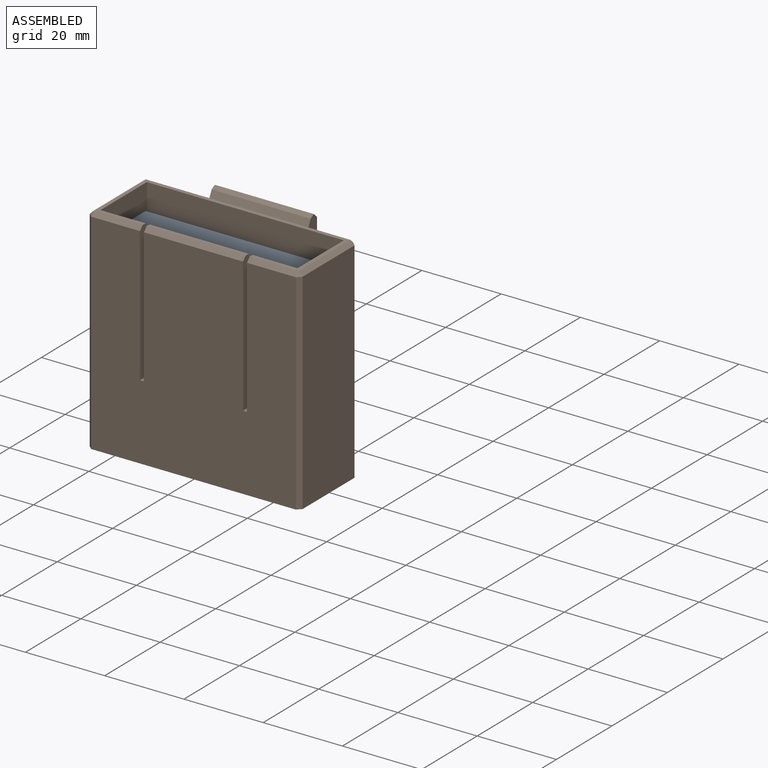
[diagram: assembled view]
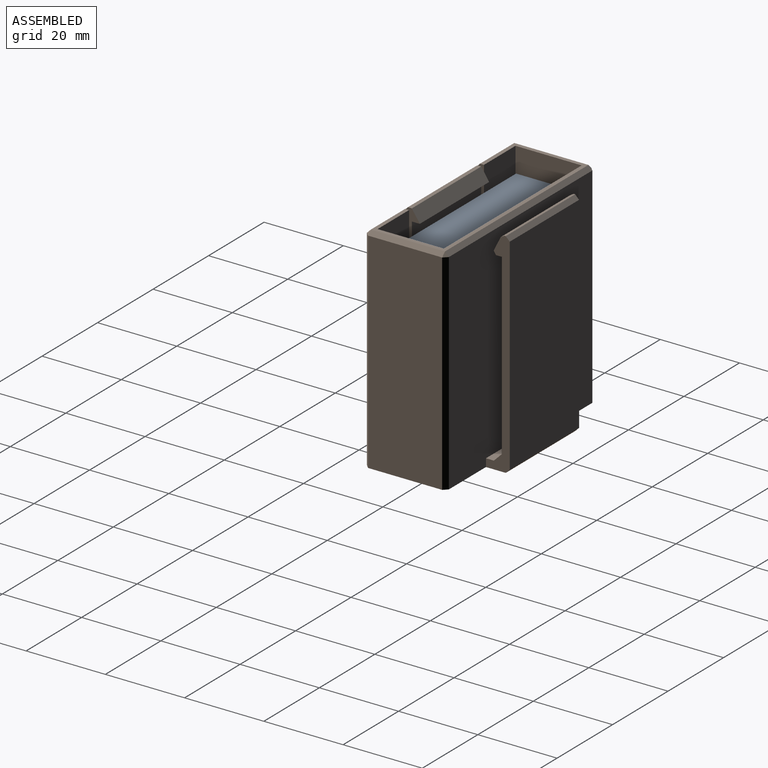
[diagram: assembled view, second angle]
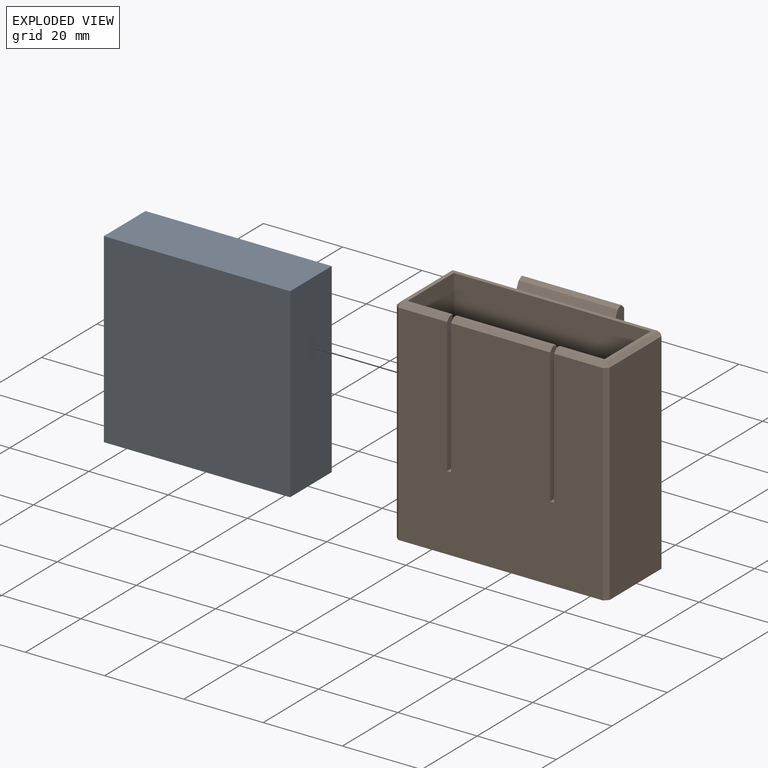
[diagram: exploded view]
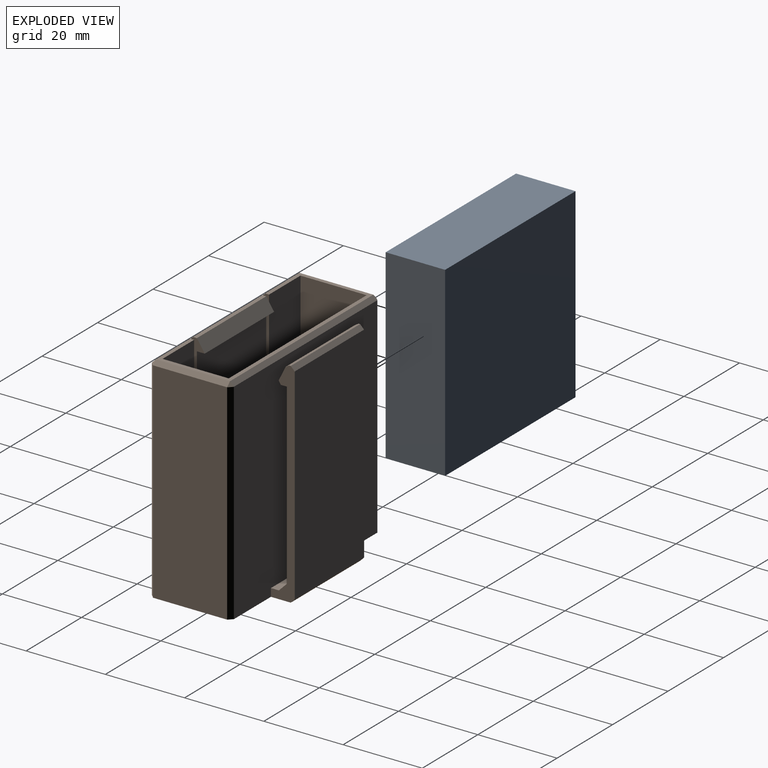
[diagram: exploded view, second angle]
ASSEMBLY  parts=2 mates=2
PART A: 6 faces, bbox 47x15x47 mm
  f0: plane 47x15mm, normal (-1,0,0), area 705mm2, adj f1,f3,f4,f5
  f1: plane 47x47mm, normal (0,-1,0), area 2209mm2, adj f0,f2,f4,f5
  f2: plane 47x15mm, normal (1,0,0), area 705mm2, adj f1,f3,f4,f5
  f3: plane 47x47mm, normal (0,1,0), area 2209mm2, adj f0,f2,f4,f5
  f4: plane 47x15mm, normal (0,0,1), area 705mm2, adj f0,f1,f2,f3
  f5: plane 47x15mm, normal (0,0,-1), area 705mm2, adj f0,f1,f2,f3
PART B: 51 faces, bbox 53.7x26.7x54 mm
  f0: plane 25x1mm, normal (0,0,1), area 25mm2, adj f19,f24,f25,f43
  f1: plane 51.7x18.7mm, normal (0,0,1), area 109.8mm2, adj f9,f10,f11,f12,f21,f22,f30,f33
  f2: plane 53x51.7mm, normal (0,-1,0), area 2672.1mm2, adj f5,f19,f20,f21,f22,f23,f24,f30
  f3: plane 45x25mm, normal (0,-1,0), area 1125mm2, adj f13,f15,f18,f27
  f4: plane 25x2mm, normal (0,0,1), area 50mm2, adj f8,f13,f15,f27
  f5: plane 53.7x25.7mm, normal (0,0,-1), area 654.2mm2, adj f2,f6,f7,f8,f13,f15,f31,f34
  f6: plane 53x18.7mm, normal (-1,0,0), area 991.1mm2, adj f5,f31,f33,f34
  f7: plane 53x18.7mm, normal (1,0,0), area 991.1mm2, adj f5,f36,f39,f42
  f8: plane 53x51.7mm, normal (0,1,0), area 2690.1mm2, adj f4,f5,f13,f15,f34,f38,f39
  f9: plane 53x16.7mm, normal (1,0,0), area 885.1mm2, adj f1,f10,f12,f49
  f10: plane 53x49.7mm, normal (0,1,0), area 2489.1mm2, adj f1,f9,f11,f19,f20,f21,f22,f23
  f11: plane 53x16.7mm, normal (-1,0,0), area 885.1mm2, adj f1,f10,f12,f49
  f12: plane 53x49.7mm, normal (0,-1,0), area 2634.1mm2, adj f1,f9,f11,f49
  f13: plane 54x6mm, normal (-1,0,0), area 122.6mm2, adj f3,f4,f5,f8,f14,f16,f17,f18
  f14: plane 52x25mm, normal (0,1,0), area 1300mm2, adj f13,f15,f29,f44
  f15: plane 54x6mm, normal (1,0,0), area 122.6mm2, adj f3,f4,f5,f8,f14,f16,f17,f18
  f16: plane 25x0.38mm, normal (0,0,1), area 9.5mm2, adj f13,f15,f28,f29
  f17: plane 25x3.55mm, normal (0,-0.89,0.45), area 99.3mm2, adj f13,f15,f28,f50
  f18: plane 25x1.5mm, normal (0,0,-1), area 37.5mm2, adj f3,f13,f15,f50
  f19: plane 35x4mm, normal (1,0,0), area 72.5mm2, adj f0,f2,f10,f20,f25,f26,f43
  f20: plane 2x1mm, normal (0,0,1), area 2mm2, adj f2,f10,f19,f21
  f21: plane 35x2mm, normal (-1,0,0), area 69.5mm2, adj f1,f2,f10,f20,f37
  f22: plane 35x2mm, normal (1,0,0), area 69.5mm2, adj f1,f2,f10,f23,f30
  f23: plane 2x1mm, normal (0,0,1), area 2mm2, adj f2,f10,f22,f24
  f24: plane 35x4mm, normal (-1,0,0), area 72.5mm2, adj f0,f2,f10,f23,f25,f26,f43
  f25: plane 25x3mm, normal (0,0.83,0.55), area 90.1mm2, adj f0,f19,f24,f26
  f26: plane 25x2mm, normal (0,0,-1), area 50mm2, adj f10,f19,f24,f25
  f27: plane 25x2mm, normal (0,-0.71,0.71), area 70.7mm2, adj f3,f4,f13,f15
  f28: plane 25x0.89mm, normal (0,-0.53,0.85), area 26.3mm2, adj f13,f15,f16,f17
  f29: plane 25x1mm, normal (0,0.71,0.71), area 35.4mm2, adj f13,f14,f15,f16
  f30: plane 12.35x1mm, normal (0,-0.71,0.71), area 17.5mm2, adj f1,f2,f22,f32
  f31: plane 53x1mm, normal (-0.71,-0.71,0), area 75mm2, adj f2,f5,f6,f32
  f32: plane 1x1mm, normal (-0.58,-0.58,0.58), area 0.9mm2, adj f30,f31,f33
  f33: plane 18.7x1mm, normal (-0.71,0,0.71), area 26.4mm2, adj f1,f6,f32,f35
  f34: plane 53x1mm, normal (-0.71,0.71,0), area 75mm2, adj f5,f6,f8,f35
  f35: plane 1x1mm, normal (-0.58,0.58,0.58), area 0.9mm2, adj f33,f34,f38
  f36: plane 53x1mm, normal (0.71,-0.71,0), area 75mm2, adj f2,f5,f7,f40
  f37: plane 12.35x1mm, normal (0,-0.71,0.71), area 17.5mm2, adj f1,f2,f21,f40
  f38: plane 51.7x1mm, normal (0,0.71,0.71), area 73.1mm2, adj f1,f8,f35,f41
  f39: plane 53x1mm, normal (0.71,0.71,0), area 75mm2, adj f5,f7,f8,f41
  f40: plane 1x1mm, normal (0.58,-0.58,0.58), area 0.9mm2, adj f36,f37,f42
  f41: plane 1x1mm, normal (0.58,0.58,0.58), area 0.9mm2, adj f38,f39,f42
  f42: plane 18.7x1mm, normal (0.71,0,0.71), area 26.4mm2, adj f1,f7,f40,f41
  f43: plane 25x1mm, normal (0,-0.71,0.71), area 35.4mm2, adj f0,f2,f19,f24
  f44: plane 25x1mm, normal (0,0.71,-0.71), area 35.4mm2, adj f5,f13,f14,f15
  f45: plane 12.7x1mm, normal (1,0,0), area 12.7mm2, adj f5,f46,f48,f49
  f46: plane 45.7x1mm, normal (0,1,0), area 45.7mm2, adj f5,f45,f47,f49
  f47: plane 12.7x1mm, normal (-1,0,0), area 12.7mm2, adj f5,f46,f48,f49
  f48: plane 45.7x1mm, normal (0,-1,0), area 45.7mm2, adj f5,f45,f47,f49
  f49: plane 49.7x16.7mm, normal (0,0,1), area 249.6mm2, adj f9,f10,f11,f12,f45,f46,f47,f48
  f50: plane 25x0.89mm, normal (0,-0.85,-0.53), area 26.3mm2, adj f13,f15,f17,f18
PLACE A t=(-2.93,-10.41,-0.88)mm
PLACE B t=(-5.43,-12.91,-1.88)mm
MATE parallel A.f0 <-> B.f9  axis (-1,0,0) through (-2.93,-2.91,22.62)mm
MATE planar A.f5 <-> B.f49  axis (0,0,-1) through (20.57,-2.91,-0.88)mm
